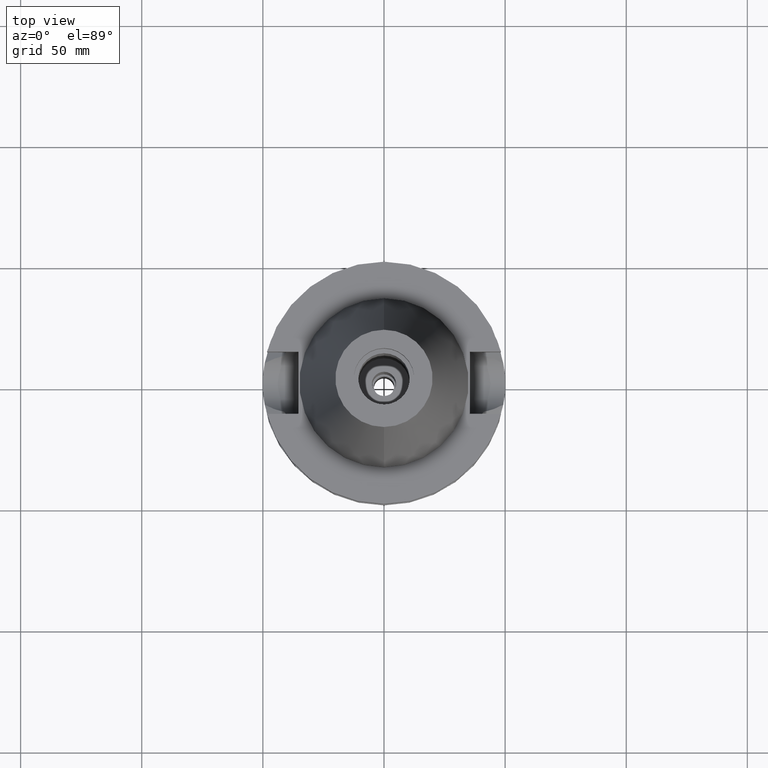
[diagram: clean part render]
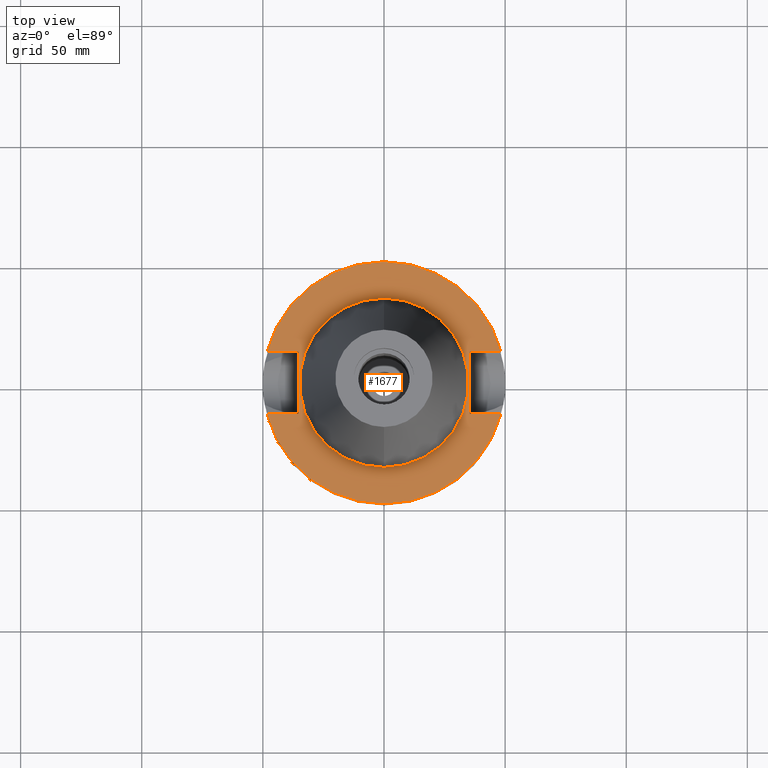
[diagram: same view with one face highlighted and labeled with its STEP entity id]
A machine part, top view. The second image highlights one B-rep face of the part: STEP entity #1677.
In plain terms, the highlighted planar face has unit normal (0, 0, -1).
Its self-contained STEP definition (entity closure, byte-faithful):
#106 = EDGE_CURVE ( 'NONE', #3534, #2962, #1565, .T. ) ;
#132 = DIRECTION ( 'NONE',  ( 0.0000000000000000000, -1.000000000000000000, 0.0000000000000000000 ) ) ;
#181 = CARTESIAN_POINT ( 'NONE',  ( 0.0000000000000000000, 34.92499999999999716, -3.000000000000000000 ) ) ;
#184 = DIRECTION ( 'NONE',  ( 0.0000000000000000000, 1.000000000000000000, 0.0000000000000000000 ) ) ;
#262 = EDGE_CURVE ( 'NONE', #2477, #1451, #1461, .T. ) ;
#283 = CARTESIAN_POINT ( 'NONE',  ( 35.39999999999999858, 12.84999999999999964, -3.000000000000000000 ) ) ;
#388 = DIRECTION ( 'NONE',  ( -1.000000000000000000, 0.0000000000000000000, 0.0000000000000000000 ) ) ;
#428 = DIRECTION ( 'NONE',  ( 0.0000000000000000000, 0.0000000000000000000, -1.000000000000000000 ) ) ;
#522 = EDGE_CURVE ( 'NONE', #1072, #1451, #3567, .T. ) ;
#523 = DIRECTION ( 'NONE',  ( 0.0000000000000000000, 0.0000000000000000000, 1.000000000000000000 ) ) ;
#530 = AXIS2_PLACEMENT_3D ( 'NONE', #2131, #1307, #3579 ) ;
#539 = CARTESIAN_POINT ( 'NONE',  ( 48.32057015392000210, 12.84999999999999964, -3.000000000000000000 ) ) ;
#559 = LINE ( 'NONE', #283, #3381 ) ;
#665 = VERTEX_POINT ( 'NONE', #2473 ) ;
#728 = CARTESIAN_POINT ( 'NONE',  ( -35.39999999999999858, -12.84999999999999964, -3.000000000000000000 ) ) ;
#760 = CIRCLE ( 'NONE', #530, 34.92499999999999716 ) ;
#804 = CARTESIAN_POINT ( 'NONE',  ( 48.32057015392000210, -12.84999999999999964, -3.000000000000000000 ) ) ;
#817 = AXIS2_PLACEMENT_3D ( 'NONE', #1837, #428, #2703 ) ;
#860 = LINE ( 'NONE', #2228, #1943 ) ;
#874 = VECTOR ( 'NONE', #1165, 1000.000000000000000 ) ;
#891 = EDGE_LOOP ( 'NONE', ( #1114, #2003 ) ) ;
#946 = AXIS2_PLACEMENT_3D ( 'NONE', #2154, #523, #3303 ) ;
#965 = EDGE_CURVE ( 'NONE', #2962, #1397, #2241, .T. ) ;
#977 = EDGE_CURVE ( 'NONE', #1722, #2070, #760, .T. ) ;
#1049 = DIRECTION ( 'NONE',  ( 0.0000000000000000000, 0.0000000000000000000, -1.000000000000000000 ) ) ;
#1072 = VERTEX_POINT ( 'NONE', #804 ) ;
#1080 = EDGE_CURVE ( 'NONE', #2477, #3534, #860, .T. ) ;
#1114 = ORIENTED_EDGE ( 'NONE', *, *, #2565, .F. ) ;
#1165 = DIRECTION ( 'NONE',  ( 0.0000000000000000000, -1.000000000000000000, 0.0000000000000000000 ) ) ;
#1195 = CARTESIAN_POINT ( 'NONE',  ( 35.39999999999999858, -12.84999999999999964, -3.000000000000000000 ) ) ;
#1297 = CIRCLE ( 'NONE', #946, 34.92499999999999716 ) ;
#1307 = DIRECTION ( 'NONE',  ( 0.0000000000000000000, 0.0000000000000000000, 1.000000000000000000 ) ) ;
#1339 = CARTESIAN_POINT ( 'NONE',  ( 0.0000000000000000000, 2.631031183287999807E-14, -3.000000000000000000 ) ) ;
#1397 = VERTEX_POINT ( 'NONE', #539 ) ;
#1433 = DIRECTION ( 'NONE',  ( 1.000000000000000000, 0.0000000000000000000, 0.0000000000000000000 ) ) ;
#1448 = ORIENTED_EDGE ( 'NONE', *, *, #1495, .F. ) ;
#1451 = VERTEX_POINT ( 'NONE', #1999 ) ;
#1461 = LINE ( 'NONE', #3670, #3376 ) ;
#1495 = EDGE_CURVE ( 'NONE', #1537, #665, #2259, .T. ) ;
#1537 = VERTEX_POINT ( 'NONE', #1685 ) ;
#1565 = LINE ( 'NONE', #2169, #3267 ) ;
#1677 = ADVANCED_FACE ( 'NONE', ( #3200, #2073 ), #3222, .F. ) ;
#1685 = CARTESIAN_POINT ( 'NONE',  ( 35.39999999999999858, 12.84999999999999964, -3.000000000000000000 ) ) ;
#1698 = CARTESIAN_POINT ( 'NONE',  ( 0.0000000000000000000, -34.92499999999999716, -3.000000000000000000 ) ) ;
#1722 = VERTEX_POINT ( 'NONE', #1698 ) ;
#1732 = EDGE_LOOP ( 'NONE', ( #1747, #2109, #2887, #1448, #2121, #3107, #3476, #3396 ) ) ;
#1747 = ORIENTED_EDGE ( 'NONE', *, *, #262, .T. ) ;
#1780 = DIRECTION ( 'NONE',  ( 0.0000000000000000000, 0.0000000000000000000, -1.000000000000000000 ) ) ;
#1837 = CARTESIAN_POINT ( 'NONE',  ( 0.0000000000000000000, 1.187907395172999884E-14, -3.000000000000000000 ) ) ;
#1886 = AXIS2_PLACEMENT_3D ( 'NONE', #1339, #1049, #184 ) ;
#1943 = VECTOR ( 'NONE', #2520, 1000.000000000000000 ) ;
#1997 = EDGE_CURVE ( 'NONE', #665, #1072, #3412, .T. ) ;
#1999 = CARTESIAN_POINT ( 'NONE',  ( -48.32057015392000210, -12.84999999999999964, -3.000000000000000000 ) ) ;
#2003 = ORIENTED_EDGE ( 'NONE', *, *, #977, .F. ) ;
#2070 = VERTEX_POINT ( 'NONE', #181 ) ;
#2073 = FACE_BOUND ( 'NONE', #891, .T. ) ;
#2109 = ORIENTED_EDGE ( 'NONE', *, *, #522, .F. ) ;
#2121 = ORIENTED_EDGE ( 'NONE', *, *, #2374, .T. ) ;
#2131 = CARTESIAN_POINT ( 'NONE',  ( 0.0000000000000000000, 2.631031183287999807E-14, -3.000000000000000000 ) ) ;
#2154 = CARTESIAN_POINT ( 'NONE',  ( 0.0000000000000000000, 2.631031183287999807E-14, -3.000000000000000000 ) ) ;
#2169 = CARTESIAN_POINT ( 'NONE',  ( -35.39999999999999858, 12.84999999999999964, -3.000000000000000000 ) ) ;
#2228 = CARTESIAN_POINT ( 'NONE',  ( -35.39999999999999858, -12.84999999999999964, -3.000000000000000000 ) ) ;
#2241 = CIRCLE ( 'NONE', #1886, 50.00000000000000000 ) ;
#2259 = LINE ( 'NONE', #2863, #874 ) ;
#2374 = EDGE_CURVE ( 'NONE', #1537, #1397, #559, .T. ) ;
#2432 = AXIS2_PLACEMENT_3D ( 'NONE', #3223, #1780, #132 ) ;
#2473 = CARTESIAN_POINT ( 'NONE',  ( 35.39999999999999858, -12.84999999999999964, -3.000000000000000000 ) ) ;
#2477 = VERTEX_POINT ( 'NONE', #728 ) ;
#2520 = DIRECTION ( 'NONE',  ( 0.0000000000000000000, 1.000000000000000000, 0.0000000000000000000 ) ) ;
#2559 = DIRECTION ( 'NONE',  ( 1.000000000000000000, 0.0000000000000000000, 0.0000000000000000000 ) ) ;
#2565 = EDGE_CURVE ( 'NONE', #2070, #1722, #1297, .T. ) ;
#2610 = CARTESIAN_POINT ( 'NONE',  ( -35.39999999999999858, 12.84999999999999964, -3.000000000000000000 ) ) ;
#2703 = DIRECTION ( 'NONE',  ( 0.0000000000000000000, -1.000000000000000000, 0.0000000000000000000 ) ) ;
#2850 = DIRECTION ( 'NONE',  ( -1.000000000000000000, 0.0000000000000000000, 0.0000000000000000000 ) ) ;
#2863 = CARTESIAN_POINT ( 'NONE',  ( 35.39999999999999858, 12.84999999999999964, -3.000000000000000000 ) ) ;
#2887 = ORIENTED_EDGE ( 'NONE', *, *, #1997, .F. ) ;
#2962 = VERTEX_POINT ( 'NONE', #2996 ) ;
#2996 = CARTESIAN_POINT ( 'NONE',  ( -48.32057015392000210, 12.84999999999999964, -3.000000000000000000 ) ) ;
#3107 = ORIENTED_EDGE ( 'NONE', *, *, #965, .F. ) ;
#3200 = FACE_OUTER_BOUND ( 'NONE', #1732, .T. ) ;
#3207 = VECTOR ( 'NONE', #2559, 1000.000000000000000 ) ;
#3222 = PLANE ( 'NONE',  #817 ) ;
#3223 = CARTESIAN_POINT ( 'NONE',  ( 0.0000000000000000000, 2.631031183287999807E-14, -3.000000000000000000 ) ) ;
#3267 = VECTOR ( 'NONE', #388, 1000.000000000000000 ) ;
#3303 = DIRECTION ( 'NONE',  ( 0.0000000000000000000, 1.000000000000000000, 0.0000000000000000000 ) ) ;
#3376 = VECTOR ( 'NONE', #2850, 1000.000000000000000 ) ;
#3381 = VECTOR ( 'NONE', #1433, 1000.000000000000000 ) ;
#3396 = ORIENTED_EDGE ( 'NONE', *, *, #1080, .F. ) ;
#3412 = LINE ( 'NONE', #1195, #3207 ) ;
#3476 = ORIENTED_EDGE ( 'NONE', *, *, #106, .F. ) ;
#3534 = VERTEX_POINT ( 'NONE', #2610 ) ;
#3567 = CIRCLE ( 'NONE', #2432, 50.00000000000000000 ) ;
#3579 = DIRECTION ( 'NONE',  ( 0.0000000000000000000, -1.000000000000000000, 0.0000000000000000000 ) ) ;
#3670 = CARTESIAN_POINT ( 'NONE',  ( -35.39999999999999858, -12.84999999999999964, -3.000000000000000000 ) ) ;